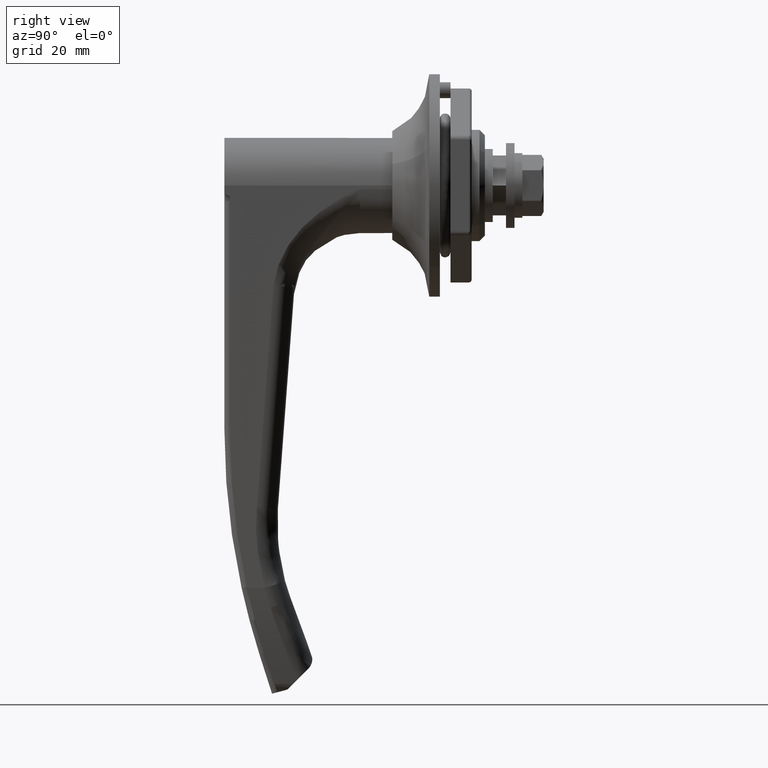
[diagram: clean part render]
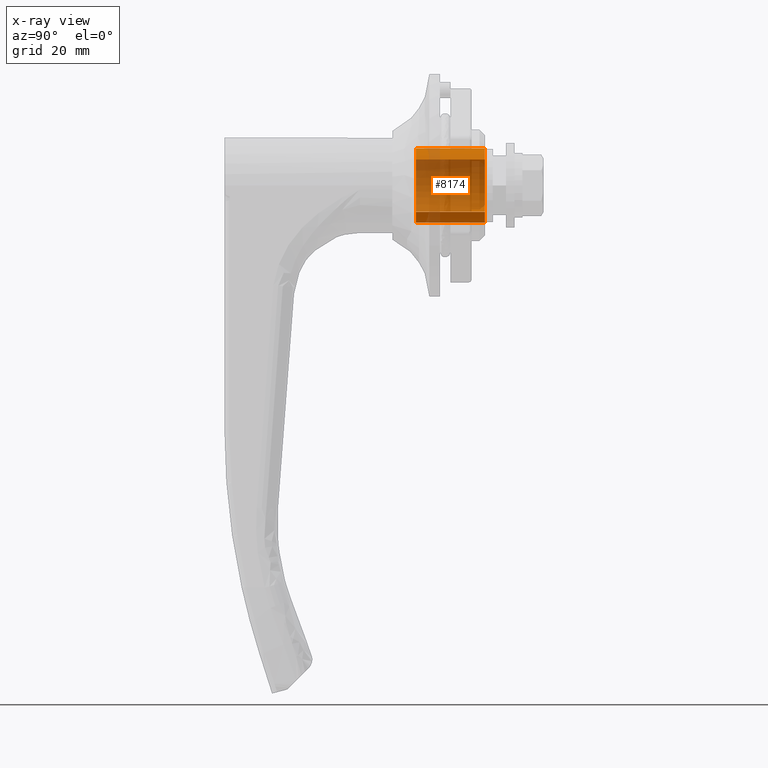
[diagram: x-ray — body ghosted, one internal face saturated and labeled with its STEP entity id]
A machine part, right view, then the same camera in x-ray: the body is ghosted and one INTERNAL B-rep face — a face not visible from any outside direction — is saturated and labeled: STEP entity #8174.
In plain terms, the highlighted face is a freeform B-spline surface patch.
Its self-contained STEP definition (entity closure, byte-faithful):
#8033=CARTESIAN_POINT('',(4.175000000000173,-4.906364850098926,-4.992753144079290));
#8034=CARTESIAN_POINT('',(4.175000000000172,0.086388293980343,-9.899117994178244));
#8035=CARTESIAN_POINT('',(4.175000000000173,4.992753144079297,-4.906364850098976));
#8036=CARTESIAN_POINT('',(4.175000000000172,9.899117994178251,0.086388293980293));
#8037=CARTESIAN_POINT('',(4.175000000000173,4.906364850098983,4.992753144079248));
#8038=CARTESIAN_POINT('',(4.175000000000172,-0.086388293980286,9.899117994178202));
#8039=CARTESIAN_POINT('',(4.175000000000173,-4.992753144079241,4.906364850098933));
#8040=CARTESIAN_POINT('',(17.833124999999999,-4.906364850098926,-4.992753144079290));
#8041=CARTESIAN_POINT('',(17.833124999999999,0.086388293980343,-9.899117994178244));
#8042=CARTESIAN_POINT('',(17.833124999999999,4.992753144079297,-4.906364850098976));
#8043=CARTESIAN_POINT('',(17.833124999999999,9.899117994178251,0.086388293980293));
#8044=CARTESIAN_POINT('',(17.833124999999999,4.906364850098983,4.992753144079248));
#8045=CARTESIAN_POINT('',(17.833124999999999,-0.086388293980286,9.899117994178202));
#8046=CARTESIAN_POINT('',(17.833124999999999,-4.992753144079241,4.906364850098933));
#8054=(BOUNDED_SURFACE()B_SPLINE_SURFACE(2,1,((#8033,#8040),(#8034,#8041),(#8035,#8042),(#8036,#8043),(#8037,#8044),(#8038,#8045),(#8039,#8046)),.UNSPECIFIED.,.F.,.F.,.U.)B_SPLINE_SURFACE_WITH_KNOTS((3,2,2,3),(2,2),(0.0,11.597979746446660,23.195959492893319,34.793939239339970),(0.0,13.658124999999830),.UNSPECIFIED.)GEOMETRIC_REPRESENTATION_ITEM()RATIONAL_B_SPLINE_SURFACE(((1.0,1.0),(0.707106781186548,0.707106781186548),(1.0,1.0),(0.707106781186548,0.707106781186548),(1.0,1.0),(0.707106781186548,0.707106781186548),(1.0,1.0)))REPRESENTATION_ITEM('')SURFACE());
#8055=CARTESIAN_POINT('',(4.499999999989443,-4.906365471531318,-4.992753637133266));
#8056=VERTEX_POINT('',#8055);
#8057=CARTESIAN_POINT('',(4.500000000000170,2.842171E-014,-7.000000000000022));
#8058=VERTEX_POINT('',#8057);
#8059=CARTESIAN_POINT('',(4.499999999989443,-4.906365471531318,-4.992753637133266));
#8060=CARTESIAN_POINT('',(4.499999999990595,-4.381476518738023,-5.509080580922252));
#8061=CARTESIAN_POINT('',(4.499999999992730,-3.400393079960670,-6.207105203794822));
#8062=CARTESIAN_POINT('',(4.499999999996470,-1.698864352742394,-6.855339306463828));
#8063=CARTESIAN_POINT('',(4.499999999998809,-0.622981173108397,-7.000219393416487));
#8064=CARTESIAN_POINT('',(4.500000000000170,2.842171E-014,-7.000000000000022));
#8065=B_SPLINE_CURVE_WITH_KNOTS('',3,(#8059,#8060,#8061,#8062,#8063,#8064),.UNSPECIFIED.,.F.,.U.,(4,1,1,4),(0.000000067055306,2.208690366041925,3.567842893551134,5.436734382470159),.UNSPECIFIED.);
#8066=EDGE_CURVE('',#8056,#8058,#8065,.T.);
#8067=ORIENTED_EDGE('',*,*,#8066,.F.);
#8068=CARTESIAN_POINT('',(17.500000000000000,-4.906365470681271,-4.992753637968587));
#8069=VERTEX_POINT('',#8068);
#8070=CARTESIAN_POINT('',(4.499999999989443,-4.906365471531318,-4.992753637133266));
#8071=CARTESIAN_POINT('',(17.500000000000000,-4.906365470681271,-4.992753637968587));
#8072=QUASI_UNIFORM_CURVE('',1,(#8070,#8071),.UNSPECIFIED.,.F.,.U.);
#8073=EDGE_CURVE('',#8056,#8069,#8072,.T.);
#8074=ORIENTED_EDGE('',*,*,#8073,.T.);
#8075=CARTESIAN_POINT('',(17.500000000000000,-0.000003149434726,-6.999999999999314));
#8076=VERTEX_POINT('',#8075);
#8077=CARTESIAN_POINT('',(17.500000000000000,-0.000003149434726,-6.999999999999314));
#8078=CARTESIAN_POINT('',(17.500000000000028,-0.481376415159215,-7.000055348897103));
#8079=CARTESIAN_POINT('',(17.499999999999989,-1.557387394681637,-6.888639206100319));
#8080=CARTESIAN_POINT('',(17.500000000000000,-3.283614868074455,-6.290370797552180));
#8081=CARTESIAN_POINT('',(17.500000000000021,-4.381490714480937,-5.509051520813593));
#8082=CARTESIAN_POINT('',(17.500000000000000,-4.906365470681271,-4.992753637968587));
#8083=B_SPLINE_CURVE_WITH_KNOTS('',3,(#8077,#8078,#8079,#8080,#8081,#8082),.UNSPECIFIED.,.F.,.U.,(4,1,1,4),(0.000000067074150,1.444132303981613,3.228042212802518,5.436731231785451),.UNSPECIFIED.);
#8084=EDGE_CURVE('',#8076,#8069,#8083,.T.);
#8085=ORIENTED_EDGE('',*,*,#8084,.F.);
#8086=CARTESIAN_POINT('',(17.500000000000000,7.000000000000028,-2.131628E-014));
#8087=VERTEX_POINT('',#8086);
#8088=CARTESIAN_POINT('',(17.500000000000000,7.000000000000028,-2.131628E-014));
#8089=CARTESIAN_POINT('',(17.500000000000039,7.000154853476462,-0.601330287177352));
#8090=CARTESIAN_POINT('',(17.499999999999929,6.866335053416046,-1.632077015610917));
#8091=CARTESIAN_POINT('',(17.500000000000050,6.314546418055453,-3.144967863741605));
#8092=CARTESIAN_POINT('',(17.500000000000011,5.527424698798655,-4.388059642166419));
#8093=CARTESIAN_POINT('',(17.499999999999979,4.530398294441786,-5.384892049294897));
#8094=CARTESIAN_POINT('',(17.500000000000082,3.421853388026309,-6.155531034688314));
#8095=CARTESIAN_POINT('',(17.499999999999780,1.946960893846340,-6.809409149719197));
#8096=CARTESIAN_POINT('',(17.500000000000281,0.715888141954220,-7.000368449605062));
#8097=CARTESIAN_POINT('',(17.500000000000000,-0.000003149434726,-6.999999999999314));
#8098=B_SPLINE_CURVE_WITH_KNOTS('',3,(#8088,#8089,#8090,#8091,#8092,#8093,#8094,#8095,#8096,#8097),.UNSPECIFIED.,.F.,.U.,(4,1,1,1,1,1,1,4),(0.000000278629203,1.803962412809717,3.092527158952968,4.810655934771009,6.184991026235727,7.301773641011858,8.848076005681710,10.995645055237629),.UNSPECIFIED.);
#8099=EDGE_CURVE('',#8087,#8076,#8098,.T.);
#8100=ORIENTED_EDGE('',*,*,#8099,.F.);
#8101=CARTESIAN_POINT('',(17.500000000000000,0.000003149434813,6.999999999999270));
#8102=VERTEX_POINT('',#8101);
#8103=CARTESIAN_POINT('',(17.500000000000000,0.000003149434813,6.999999999999270));
#8104=CARTESIAN_POINT('',(17.500000000000011,0.544064401616866,7.000124527486792));
#8105=CARTESIAN_POINT('',(17.499999999999989,1.574823529289831,6.879162548944072));
#8106=CARTESIAN_POINT('',(17.500000000000021,3.204968631172743,6.307480348633981));
#8107=CARTESIAN_POINT('',(17.499999999999961,4.745338157834524,5.278292249231748));
#8108=CARTESIAN_POINT('',(17.500000000000028,5.983676098030013,3.787919867393087));
#8109=CARTESIAN_POINT('',(17.500000000000021,6.800565266428941,2.004237691659207));
#8110=CARTESIAN_POINT('',(17.500000000000021,7.000347974013642,0.715879464328363));
#8111=CARTESIAN_POINT('',(17.500000000000000,7.000000000000028,-2.131628E-014));
#8112=B_SPLINE_CURVE_WITH_KNOTS('',3,(#8103,#8104,#8105,#8106,#8107,#8108,#8109,#8110,#8111),.UNSPECIFIED.,.F.,.U.,(4,1,1,1,1,1,4),(0.000000279724212,1.632160241597743,3.092526161666311,5.154253002108247,7.129965364436253,8.848073147365202,10.995641505068360),.UNSPECIFIED.);
#8113=EDGE_CURVE('',#8102,#8087,#8112,.T.);
#8114=ORIENTED_EDGE('',*,*,#8113,.F.);
#8115=CARTESIAN_POINT('',(17.500000000000000,-4.992752513217845,4.906364368900147));
#8116=VERTEX_POINT('',#8115);
#8117=CARTESIAN_POINT('',(17.500000000000000,-4.992752513217845,4.906364368900147));
#8118=CARTESIAN_POINT('',(17.500000000000028,-4.647817865990477,5.257475952155212));
#8119=CARTESIAN_POINT('',(17.499999999999972,-3.883481136518868,5.886439087162611));
#8120=CARTESIAN_POINT('',(17.500000000000039,-2.228834219206355,6.743283803739277));
#8121=CARTESIAN_POINT('',(17.499999999999979,-0.868722492506633,7.000858577669298));
#8122=CARTESIAN_POINT('',(17.500000000000000,0.000003149434813,6.999999999999270));
#8123=B_SPLINE_CURVE_WITH_KNOTS('',3,(#8117,#8118,#8119,#8120,#8121,#8122),.UNSPECIFIED.,.F.,.U.,(4,1,1,4),(0.000000074930550,1.476586628793000,2.953161948110992,5.558912064446576),.UNSPECIFIED.);
#8124=EDGE_CURVE('',#8116,#8102,#8123,.T.);
#8125=ORIENTED_EDGE('',*,*,#8124,.F.);
#8126=CARTESIAN_POINT('',(4.500000000010992,-4.992752512345822,4.906364369787515));
#8127=VERTEX_POINT('',#8126);
#8128=CARTESIAN_POINT('',(4.500000000010992,-4.992752512345822,4.906364369787515));
#8129=CARTESIAN_POINT('',(17.500000000000000,-4.992752513217845,4.906364368900147));
#8130=QUASI_UNIFORM_CURVE('',1,(#8128,#8129),.UNSPECIFIED.,.F.,.U.);
#8131=EDGE_CURVE('',#8127,#8116,#8130,.T.);
#8132=ORIENTED_EDGE('',*,*,#8131,.F.);
#8133=CARTESIAN_POINT('',(4.500000000000170,2.842171E-014,6.999999999999979));
#8134=VERTEX_POINT('',#8133);
#8135=CARTESIAN_POINT('',(4.500000000000170,2.842171E-014,6.999999999999979));
#8136=CARTESIAN_POINT('',(4.500000000001254,-0.492188873381808,7.000053369844582));
#8137=CARTESIAN_POINT('',(4.500000000003602,-1.592383329106095,6.883574187733983));
#8138=CARTESIAN_POINT('',(4.500000000007465,-3.353435797358502,6.258432631885437));
#8139=CARTESIAN_POINT('',(4.500000000009839,-4.465366982227366,5.443539538496556));
#8140=CARTESIAN_POINT('',(4.500000000010992,-4.992752512345822,4.906364369787515));
#8141=B_SPLINE_CURVE_WITH_KNOTS('',3,(#8135,#8136,#8137,#8138,#8139,#8140),.UNSPECIFIED.,.F.,.U.,(4,1,1,4),(0.000000074909657,1.476585791862599,3.300584007207918,5.558908913707213),.UNSPECIFIED.);
#8142=EDGE_CURVE('',#8134,#8127,#8141,.T.);
#8143=ORIENTED_EDGE('',*,*,#8142,.F.);
#8144=CARTESIAN_POINT('',(4.500000000000170,6.999999999999321,0.000003149434765));
#8145=VERTEX_POINT('',#8144);
#8146=CARTESIAN_POINT('',(4.500000000000170,6.999999999999321,0.000003149434765));
#8147=CARTESIAN_POINT('',(4.500000000000171,7.000124654709226,0.544064985818812));
#8148=CARTESIAN_POINT('',(4.500000000000175,6.879191492659797,1.574838148859967));
#8149=CARTESIAN_POINT('',(4.500000000000166,6.345467335409933,3.096234373798977));
#8150=CARTESIAN_POINT('',(4.500000000000150,5.527414471766326,4.388063667608482));
#8151=CARTESIAN_POINT('',(4.500000000000193,4.530397842857693,5.384887660267675));
#8152=CARTESIAN_POINT('',(4.500000000000159,3.421858962374912,6.155536156563798));
#8153=CARTESIAN_POINT('',(4.500000000000178,1.946961267751965,6.809406641710035));
#8154=CARTESIAN_POINT('',(4.500000000000171,0.715892011114029,7.000368916471982));
#8155=CARTESIAN_POINT('',(4.500000000000170,2.842171E-014,6.999999999999979));
#8156=B_SPLINE_CURVE_WITH_KNOTS('',3,(#8146,#8147,#8148,#8149,#8150,#8151,#8152,#8153,#8154,#8155),.UNSPECIFIED.,.F.,.U.,(4,1,1,1,1,1,1,4),(0.000000279725390,1.632160241598573,3.092526161666899,4.810654381597022,6.184989025984376,7.301771280978636,8.848073147365197,10.995641505068360),.UNSPECIFIED.);
#8157=EDGE_CURVE('',#8145,#8134,#8156,.T.);
#8158=ORIENTED_EDGE('',*,*,#8157,.F.);
#8159=CARTESIAN_POINT('',(4.500000000000170,2.842171E-014,-7.000000000000022));
#8160=CARTESIAN_POINT('',(4.500000000000170,0.544060354262891,-7.000114502317114));
#8161=CARTESIAN_POINT('',(4.500000000000168,1.574845242831079,-6.879215706923048));
#8162=CARTESIAN_POINT('',(4.500000000000173,2.851668624687886,-6.431174228638218));
#8163=CARTESIAN_POINT('',(4.500000000000168,3.954223104792299,-5.815457160140240));
#8164=CARTESIAN_POINT('',(4.500000000000192,4.920179407855738,-5.042407169018667));
#8165=CARTESIAN_POINT('',(4.500000000000158,5.864919406731861,-3.919587368854734));
#8166=CARTESIAN_POINT('',(4.500000000000177,6.738409835564270,-2.261670981416372));
#8167=CARTESIAN_POINT('',(4.500000000000181,7.000684991527754,-0.859127756939485));
#8168=CARTESIAN_POINT('',(4.500000000000170,6.999999999999321,0.000003149434765));
#8169=B_SPLINE_CURVE_WITH_KNOTS('',3,(#8159,#8160,#8161,#8162,#8163,#8164,#8165,#8166,#8167,#8168),.UNSPECIFIED.,.F.,.U.,(4,1,1,1,1,1,1,4),(0.000000278629720,1.632160768249349,3.092527158953136,4.037486918687939,5.412003578076502,6.786364724930066,8.418542314685368,10.995645055237640),.UNSPECIFIED.);
#8170=EDGE_CURVE('',#8058,#8145,#8169,.T.);
#8171=ORIENTED_EDGE('',*,*,#8170,.F.);
#8172=EDGE_LOOP('',(#8067,#8074,#8085,#8100,#8114,#8125,#8132,#8143,#8158,#8171));
#8173=FACE_OUTER_BOUND('',#8172,.T.);
#8174=ADVANCED_FACE('',(#8173),#8054,.F.);